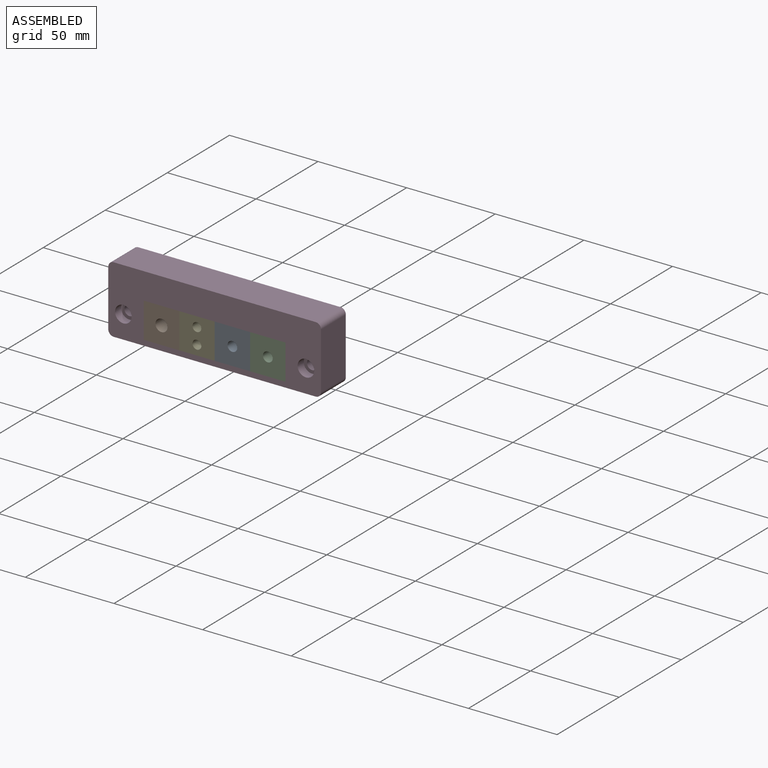
[diagram: assembled view]
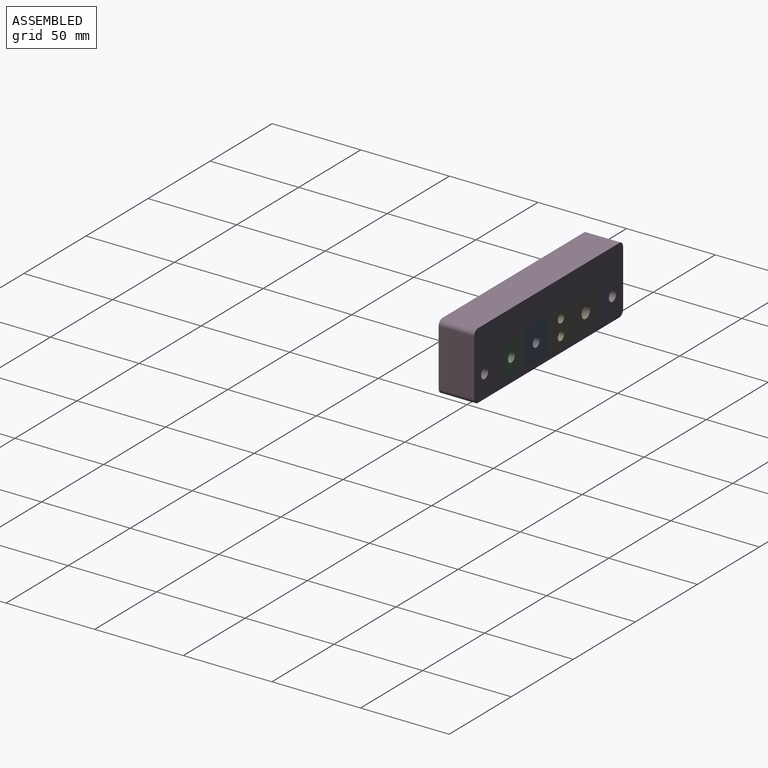
[diagram: assembled view, second angle]
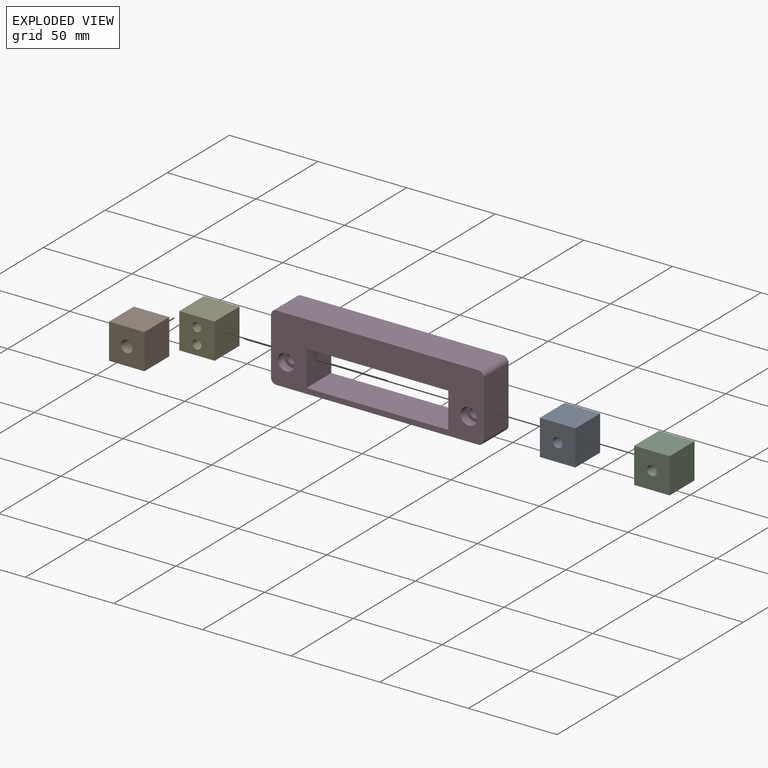
[diagram: exploded view]
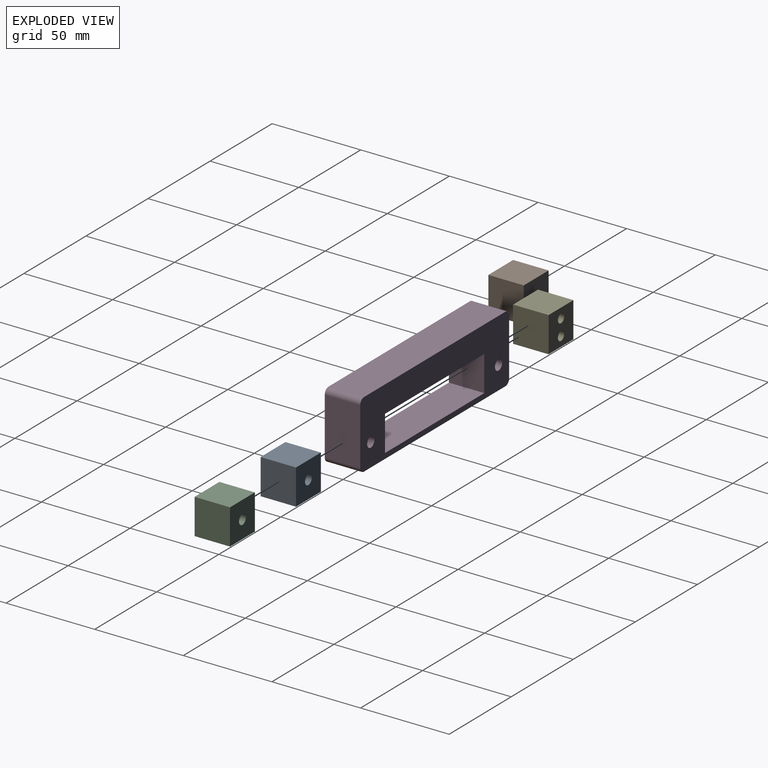
[diagram: exploded view, second angle]
ASSEMBLY  parts=5 mates=3
PART A: 7 faces, bbox 20x20x20 mm
  f0: plane 20x20mm, normal (0,0,1), area 400mm2, adj f1,f3,f4,f5
  f1: plane 20x20mm, normal (-1,0,0), area 400mm2, adj f0,f2,f4,f5
  f2: plane 20x20mm, normal (0,0,-1), area 400mm2, adj f1,f3,f4,f5
  f3: plane 20x20mm, normal (1,0,0), area 400mm2, adj f0,f2,f4,f5
  f4: plane 20x20mm, normal (0,-1,0), area 376.2mm2, adj f0,f1,f2,f3,f6
  f5: plane 20x20mm, normal (0,1,0), area 376.2mm2, adj f0,f1,f2,f3,f6
  f6: cylinder r=2.75mm len=20mm, axis (0,-1,0), area 345.6mm2, adj f4,f5
PART B: 7 faces, bbox 20x20x20 mm
  f0: plane 20x20mm, normal (0,0,1), area 400mm2, adj f1,f3,f4,f5
  f1: plane 20x20mm, normal (-1,0,0), area 400mm2, adj f0,f2,f4,f5
  f2: plane 20x20mm, normal (0,0,-1), area 400mm2, adj f1,f3,f4,f5
  f3: plane 20x20mm, normal (1,0,0), area 400mm2, adj f0,f2,f4,f5
  f4: plane 20x20mm, normal (0,-1,0), area 363.7mm2, adj f0,f1,f2,f3,f6
  f5: plane 20x20mm, normal (0,1,0), area 363.7mm2, adj f0,f1,f2,f3,f6
  f6: cylinder r=3.4mm len=20mm, axis (0,-1,0), area 427.3mm2, adj f4,f5
PART C: same geometry as A
PART D: 20 faces, bbox 120x20x38 mm
  f0: plane 114x20mm, normal (0,0,1), area 2280mm2, adj f4,f5,f16,f19
  f1: plane 32x20mm, normal (-1,0,0), area 640mm2, adj f4,f5,f16,f17
  f2: plane 114x20mm, normal (0,0,-1), area 2280mm2, adj f4,f5,f17,f18
  f3: plane 32x20mm, normal (1,0,0), area 640mm2, adj f4,f5,f18,f19
  f4: plane 120x38mm, normal (0,-1,0), area 2813.5mm2, adj f0,f1,f2,f3,f8,f11,f12,f13
  f5: plane 120x38mm, normal (0,1,0), area 2899.4mm2, adj f0,f1,f2,f3,f6,f9,f12,f13
  f6: cylinder r=2.9mm len=15mm, axis (0,-1,0), area 273.3mm2, adj f5,f7
  f7: plane 9.4x9.4mm, normal (0,-1,0), area 43mm2, adj f6,f8
  f8: cylinder r=4.7mm len=9.4mm, axis (0,-1,0), area 147.7mm2, adj f4,f7
  f9: cylinder r=2.9mm len=15mm, axis (0,-1,0), area 273.3mm2, adj f5,f10
  f10: plane 9.4x9.4mm, normal (0,-1,0), area 43mm2, adj f9,f11
  f11: cylinder r=4.7mm len=9.4mm, axis (0,-1,0), area 147.7mm2, adj f4,f10
  f12: plane 20x20mm, normal (1,0,0), area 400mm2, adj f4,f5,f13,f15
  f13: plane 80x20mm, normal (0,0,1), area 1600mm2, adj f4,f5,f12,f14
  f14: plane 20x20mm, normal (-1,0,0), area 400mm2, adj f4,f5,f13,f15
  f15: plane 80x20mm, normal (0,0,-1), area 1600mm2, adj f4,f5,f12,f14
  f16: cylinder r=3mm len=20mm, axis (0,-1,0), area 94.2mm2, adj f0,f1,f4,f5
  f17: cylinder r=3mm len=20mm, axis (0,1,0), area 94.2mm2, adj f1,f2,f4,f5
  f18: cylinder r=3mm len=20mm, axis (0,-1,0), area 94.2mm2, adj f2,f3,f4,f5
  f19: cylinder r=3mm len=20mm, axis (0,1,0), area 94.2mm2, adj f0,f3,f4,f5
PART E: 8 faces, bbox 20x20x20 mm
  f0: plane 20x20mm, normal (0,0,1), area 400mm2, adj f1,f3,f4,f5
  f1: plane 20x20mm, normal (-1,0,0), area 400mm2, adj f0,f2,f4,f5
  f2: plane 20x20mm, normal (0,0,-1), area 400mm2, adj f1,f3,f4,f5
  f3: plane 20x20mm, normal (1,0,0), area 400mm2, adj f0,f2,f4,f5
  f4: plane 20x20mm, normal (0,-1,0), area 360.7mm2, adj f0,f1,f2,f3,f6,f7
  f5: plane 20x20mm, normal (0,1,0), area 360.7mm2, adj f0,f1,f2,f3,f6,f7
  f6: cylinder r=2.5mm len=20mm, axis (0,-1,0), area 314.2mm2, adj f4,f5
  f7: cylinder r=2.5mm len=20mm, axis (0,-1,0), area 314.2mm2, adj f4,f5
PLACE A t=(1.95,-4.59,-5.91)mm
PLACE B t=(-38.05,-4.59,-5.91)mm
PLACE C t=(21.95,-4.59,-5.91)mm
PLACE D t=(-8.05,-4.59,0.09)mm fixed
PLACE E t=(-18.05,-4.59,-5.91)mm
MATE fastened B.f3 <-> E.f1  axis (1,0,0) through (-28.05,-4.59,-5.91)mm
MATE fastened D.f12 <-> B.f1  axis (1,0,0) through (-48.05,-4.59,-5.91)mm
MATE fastened A.f3 <-> C.f1  axis (1,0,0) through (11.95,-4.59,-5.91)mm
